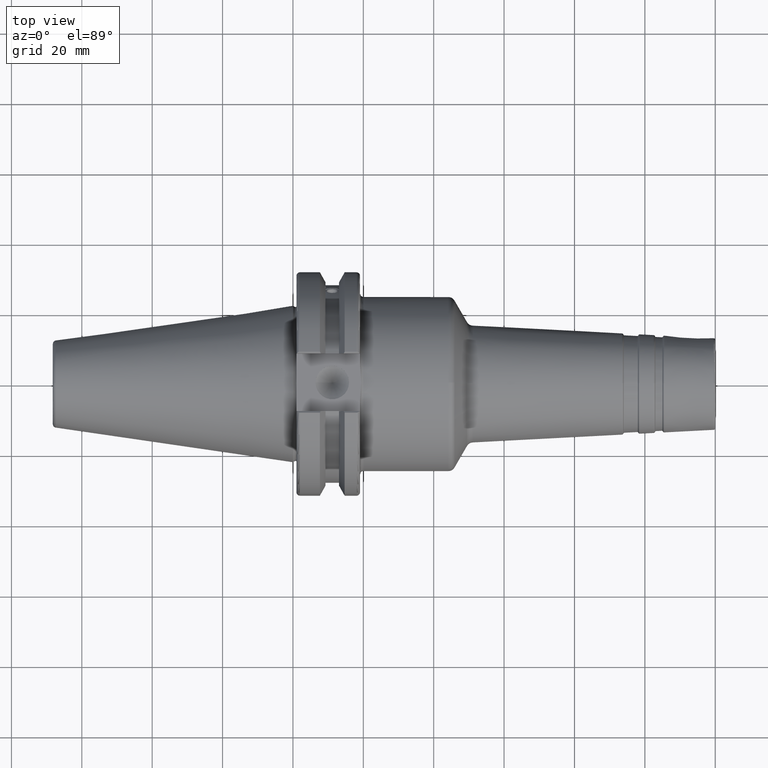
[diagram: clean part render]
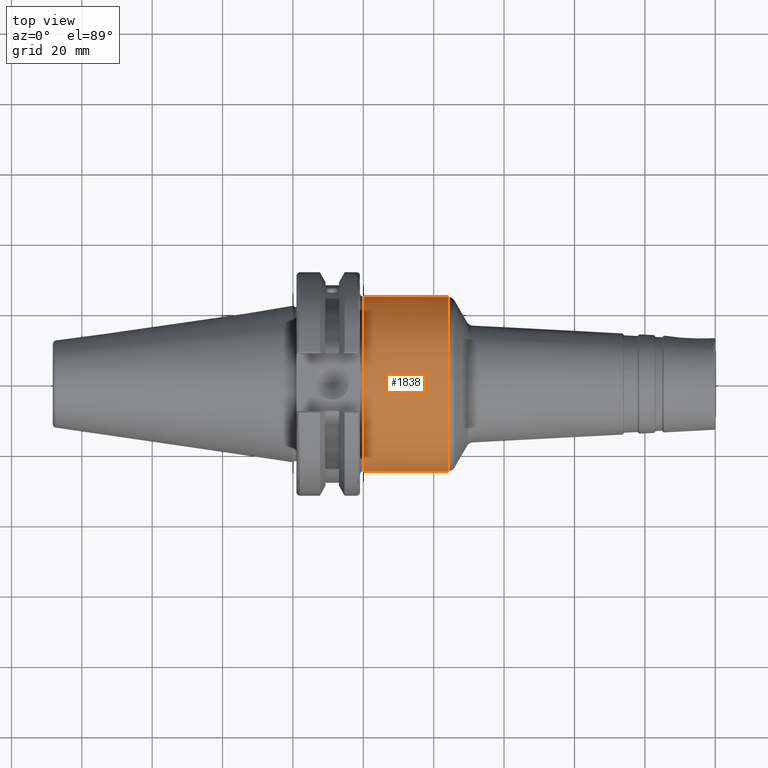
[diagram: same view with one face highlighted and labeled with its STEP entity id]
A machine part, top view. The second image highlights one B-rep face of the part: STEP entity #1838.
In plain terms, the highlighted cylindrical surface (bore or boss wall) has radius 24.75 mm, axis along (1, 0, 0).
Its self-contained STEP definition (entity closure, byte-faithful):
#51=CYLINDRICAL_SURFACE('',#2019,24.75);
#84=B_SPLINE_CURVE_WITH_KNOTS('',3,(#2963,#2964,#2965,#2966,#2967,#2968,
#2969,#2970,#2971,#2972,#2973,#2974,#2975,#2976,#2977,#2978,#2979,#2980),
 .UNSPECIFIED.,.F.,.F.,(4,2,2,2,2,2,2,2,4),(-2.48845986202559,-2.17733241913027,
-1.86620497623495,-1.55521745362387,-1.24422993101279,-0.933242408401713,
-0.622254885790634,-0.311127442895317,0.),.UNSPECIFIED.);
#179=LINE('',#2962,#272);
#272=VECTOR('',#2361,24.75);
#397=FACE_OUTER_BOUND('',#504,.T.);
#504=EDGE_LOOP('',(#1336,#1337,#1338,#1339,#1340,#1341,#1342));
#651=CIRCLE('',#2014,24.75);
#652=CIRCLE('',#2015,24.75);
#655=CIRCLE('',#2020,24.75);
#656=CIRCLE('',#2021,24.75);
#771=VERTEX_POINT('',#2923);
#772=VERTEX_POINT('',#2934);
#773=VERTEX_POINT('',#2936);
#778=VERTEX_POINT('',#2959);
#779=VERTEX_POINT('',#2960);
#982=EDGE_CURVE('',#771,#772,#651,.T.);
#983=EDGE_CURVE('',#772,#773,#652,.T.);
#990=EDGE_CURVE('',#778,#779,#655,.T.);
#991=EDGE_CURVE('',#778,#772,#179,.T.);
#992=EDGE_CURVE('',#771,#773,#84,.T.);
#993=EDGE_CURVE('',#779,#778,#656,.T.);
#1336=ORIENTED_EDGE('',*,*,#990,.F.);
#1337=ORIENTED_EDGE('',*,*,#991,.T.);
#1338=ORIENTED_EDGE('',*,*,#982,.F.);
#1339=ORIENTED_EDGE('',*,*,#992,.T.);
#1340=ORIENTED_EDGE('',*,*,#983,.F.);
#1341=ORIENTED_EDGE('',*,*,#991,.F.);
#1342=ORIENTED_EDGE('',*,*,#993,.F.);
#1838=ADVANCED_FACE('',(#397),#51,.T.);
#2014=AXIS2_PLACEMENT_3D('',#2935,#2344,#2345);
#2015=AXIS2_PLACEMENT_3D('',#2937,#2346,#2347);
#2019=AXIS2_PLACEMENT_3D('',#2958,#2357,#2358);
#2020=AXIS2_PLACEMENT_3D('',#2961,#2359,#2360);
#2021=AXIS2_PLACEMENT_3D('',#2981,#2362,#2363);
#2344=DIRECTION('center_axis',(-1.,0.,0.));
#2345=DIRECTION('ref_axis',(0.,6.12323399573677E-17,1.));
#2346=DIRECTION('center_axis',(-1.,0.,0.));
#2347=DIRECTION('ref_axis',(0.,6.12323399573677E-17,1.));
#2357=DIRECTION('center_axis',(1.,0.,0.));
#2358=DIRECTION('ref_axis',(0.,1.,0.));
#2359=DIRECTION('center_axis',(1.,0.,0.));
#2360=DIRECTION('ref_axis',(0.,-1.,1.83697019872103E-16));
#2361=DIRECTION('',(-1.,0.,0.));
#2362=DIRECTION('center_axis',(1.,0.,0.));
#2363=DIRECTION('ref_axis',(0.,-1.,1.83697019872103E-16));
#2923=CARTESIAN_POINT('',(20.05,-8.19,-23.3556502799644));
#2934=CARTESIAN_POINT('',(20.05,-24.75,-3.0310008278897E-15));
#2935=CARTESIAN_POINT('Origin',(20.05,0.,0.));
#2936=CARTESIAN_POINT('',(20.05,8.19,-23.3556502799644));
#2937=CARTESIAN_POINT('Origin',(20.05,0.,0.));
#2958=CARTESIAN_POINT('Origin',(32.1920847601952,0.,0.));
#2959=CARTESIAN_POINT('',(44.1794689820112,-24.75,-3.0310008278897E-15));
#2960=CARTESIAN_POINT('',(44.1794689820112,-3.0310008278897E-15,24.75));
#2961=CARTESIAN_POINT('Origin',(44.1794689820112,0.,0.));
#2962=CARTESIAN_POINT('',(32.1920847601952,-24.75,-3.0310008278897E-15));
#2963=CARTESIAN_POINT('Ctrl Pts',(20.05,-8.19,-23.3556502799644));
#2964=CARTESIAN_POINT('Ctrl Pts',(21.0870914763177,-8.19,-23.3556502799644));
#2965=CARTESIAN_POINT('Ctrl Pts',(22.1874172494719,-7.98112852617489,-23.4319820145953));
#2966=CARTESIAN_POINT('Ctrl Pts',(24.2026226557735,-7.14301766428651,-23.7009173446597));
#2967=CARTESIAN_POINT('Ctrl Pts',(25.1182638848105,-6.51414519102515,-23.8889373554493));
#2968=CARTESIAN_POINT('Ctrl Pts',(26.563820070037,-5.06858900579863,-24.2368381566145));
#2969=CARTESIAN_POINT('Ctrl Pts',(27.1929429534371,-4.15281808103606,-24.420258379043));
#2970=CARTESIAN_POINT('Ctrl Pts',(28.0312404144778,-2.13713243178097,-24.6784841969773));
#2971=CARTESIAN_POINT('Ctrl Pts',(28.24,-1.03662507537027,-24.75));
#2972=CARTESIAN_POINT('Ctrl Pts',(28.24,1.03662507537027,-24.75));
#2973=CARTESIAN_POINT('Ctrl Pts',(28.0312404144778,2.13713243178098,-24.6784841969773));
#2974=CARTESIAN_POINT('Ctrl Pts',(27.1929429534371,4.15281808103607,-24.420258379043));
#2975=CARTESIAN_POINT('Ctrl Pts',(26.563820070037,5.06858900579863,-24.2368381566145));
#2976=CARTESIAN_POINT('Ctrl Pts',(25.1182638848105,6.51414519102516,-23.8889373554493));
#2977=CARTESIAN_POINT('Ctrl Pts',(24.2026226557734,7.14301766428652,-23.7009173446597));
#2978=CARTESIAN_POINT('Ctrl Pts',(22.1874172494719,7.98112852617489,-23.4319820145953));
#2979=CARTESIAN_POINT('Ctrl Pts',(21.0870914763177,8.19,-23.3556502799644));
#2980=CARTESIAN_POINT('Ctrl Pts',(20.05,8.19,-23.3556502799644));
#2981=CARTESIAN_POINT('Origin',(44.1794689820112,0.,0.));